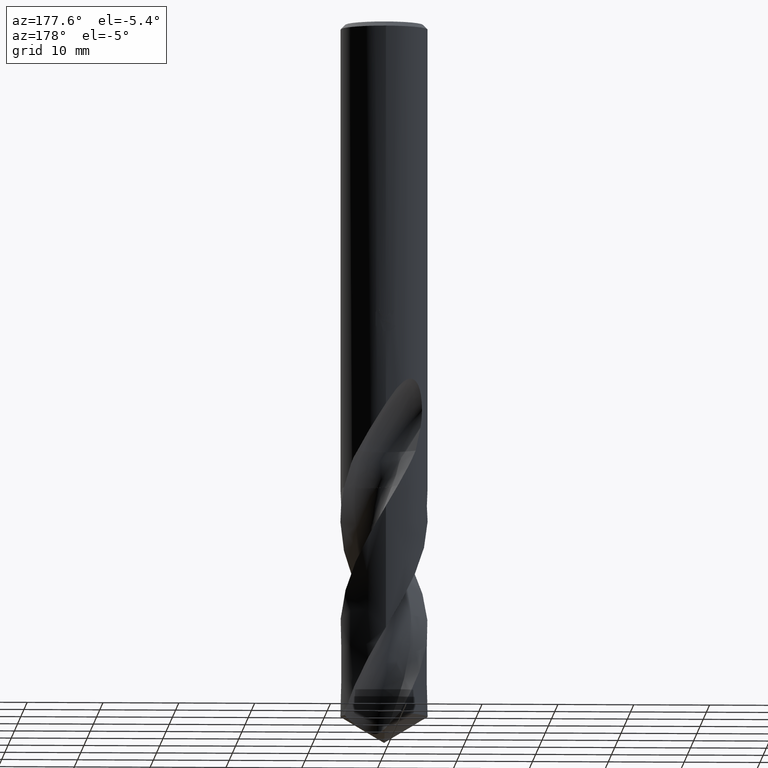
[diagram: clean part render]
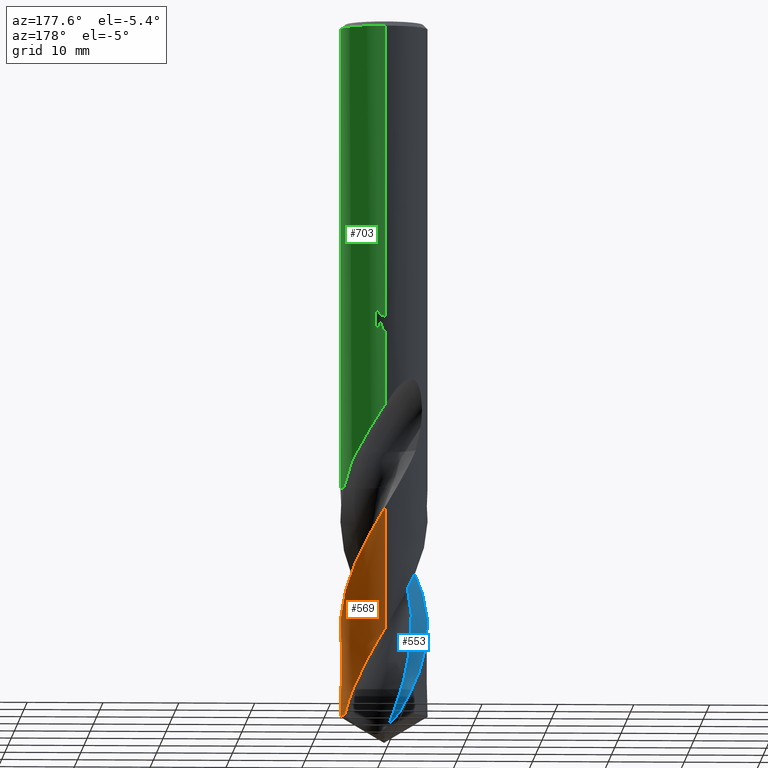
[diagram: same view with three faces highlighted in distinct colors, each labeled with its STEP entity id]
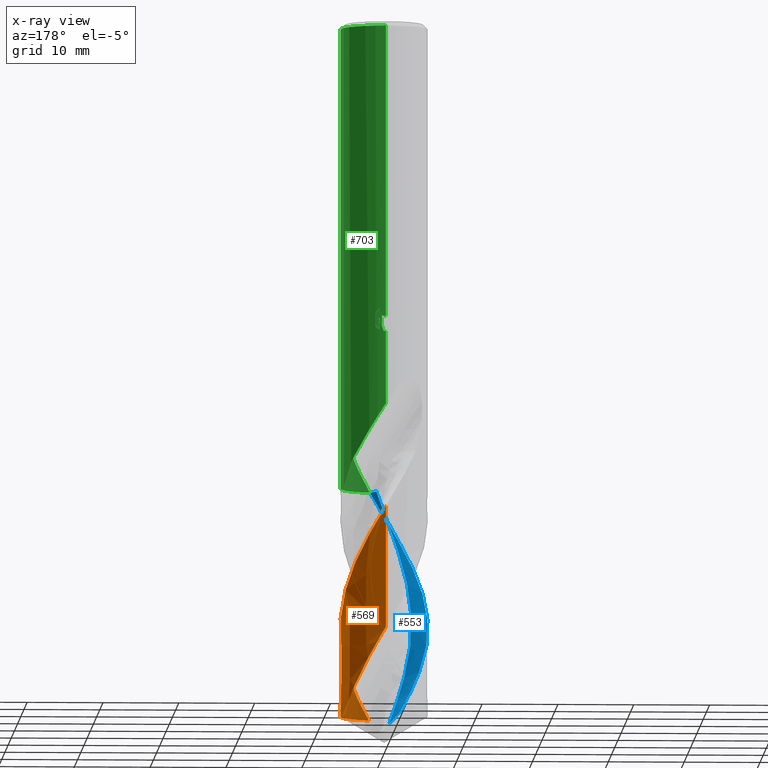
[diagram: x-ray of the same camera — body ghosted, the three highlighted faces saturated]
A machine part, auxiliary view with three faces highlighted in distinct colors.
The next image is the same camera in x-ray (body ghosted, the three faces saturated) — at least one of them is partly hidden behind the body in this view.
Their STEP definitions:

[orange] entity #569 — the highlighted conical surface has half-angle 0 deg.
#267=VERTEX_POINT('',#742);
#287=EDGE_CURVE('',#319,#267,#763,.T.);
#319=VERTEX_POINT('',#797);
#367=EDGE_CURVE('',#387,#691,#848,.T.);
#387=VERTEX_POINT('',#872);
#403=EDGE_CURVE('',#319,#691,#893,.T.);
#527=EDGE_CURVE('',#387,#267,#1024,.T.);
#569=ADVANCED_FACE('',(#1069),#1070,.T.);
#691=VERTEX_POINT('',#1206);
#742=CARTESIAN_POINT('',(3.20041766304614E-015,5.7499624244146,-80.2178718951749));
#763=LINE('',#1389,#1390);
#797=CARTESIAN_POINT('',(-1.18986122117529E-014,5.74990918113268,-64.1676571706662));
#848=CIRCLE('',#3029,5.75);
#872=CARTESIAN_POINT('',(5.29059270861493,2.2521387149886,-91.5450514405915));
#893=B_SPLINE_CURVE_WITH_KNOTS('',3,(#4177,#4178,#4179,#4180,#4181,#4182,#4183,#4184,#4185,#4186,#4187,#4188,#4189,#4190,#4191,#4192,#4193,#4194,#4195,#4196,#4197,#4198,#4199,#4200,#4201,#4202,#4203,#4204,#4205,#4206,#4207,#4208,#4209,#4210,#4211,#4212,#4213,#4214,#4215,#4216,#4217,#4218,#4219,#4220,#4221,#4222,#4223,#4224,#4225,#4226,#4227,#4228,#4229,#4230),.UNSPECIFIED.,.F.,.F.,(4,2,2,2,2,2,2,2,2,2,2,2,2,2,2,2,2,2,2,2,2,2,2,2,2,2,4),(0.0,2.99058218471604,5.09417590476594,6.14555053451025,8.24858072771413,8.77354625455534,10.9154304070789,11.4506291270123,13.5907262284437,14.6614087604156,15.7347783019599,16.2721043805413,17.3438532425549,19.4880628600157,19.7297798634997,21.6359597791469,23.3095110379276,24.7746160400933,25.415098701845,27.8175177233194,28.0428586697684,29.7904662784701,30.446107516333,31.019588796564,33.0280774075556,34.0325649657904,35.0369068433877),.UNSPECIFIED.);
#1024=B_SPLINE_CURVE_WITH_KNOTS('',3,(#5305,#5306,#5307,#5308,#5309,#5310,#5311,#5312,#5313,#5314,#5315,#5316,#5317,#5318,#5319,#5320,#5321,#5322,#5323,#5324,#5325,#5326,#5327,#5328,#5329,#5330,#5331,#5332,#5333,#5334,#5335,#5336,#5337,#5338,#5339,#5340,#5341,#5342,#5343,#5344,#5345,#5346,#5347,#5348,#5349,#5350,#5351,#5352,#5353,#5354),.UNSPECIFIED.,.F.,.F.,(4,2,2,2,2,2,2,2,2,2,2,2,2,2,2,2,2,2,2,2,2,2,2,2,4),(0.0,0.941647731960947,1.98477535587764,4.07382297962059,4.59460417437471,5.92103137837952,8.06810609950576,9.14297982474527,10.216909271789,11.9639145555234,13.038573890981,14.9671165081396,15.9034067747389,18.060923154003,18.4564625276565,21.040035445868,21.1159693745982,23.4712200408874,24.1761701578863,25.5453604956562,27.9409924483365,28.8397218571972,30.4101824918901,32.7727497577014,35.1194182658402),.UNSPECIFIED.);
#1069=FACE_OUTER_BOUND('',#5635,.T.);
#1070=CONICAL_SURFACE('',#5636,5.74995,3.31729405725101E-006);
#1206=CARTESIAN_POINT('',(1.79632452488737,-5.46220817996606,-91.5450514405915));
#1389=CARTESIAN_POINT('',(-7.04590510007028E-016,5.74995,-76.4725257202957));
#1390=VECTOR('',#6912,1.0);
#3029=AXIS2_PLACEMENT_3D('',#6958,#6959,#6960);
#4177=CARTESIAN_POINT('',(-1.61734998715461,5.51774674740223,-61.4036546112559));
#4178=CARTESIAN_POINT('',(-1.12883666681916,5.66094167760172,-62.2607317719156));
#4179=CARTESIAN_POINT('',(-0.62351901038473,5.73860128513405,-63.1164037456356));
#4180=CARTESIAN_POINT('',(0.243047594537756,5.7559100260359,-64.5774479238013));
#4181=CARTESIAN_POINT('',(0.600793689765306,5.72962957079828,-65.179793124741));
#4182=CARTESIAN_POINT('',(1.1301806195747,5.64058713684087,-66.0846791022338));
#4183=CARTESIAN_POINT('',(1.30507766635044,5.60270392521229,-66.3859817805289));
#4184=CARTESIAN_POINT('',(1.82357919614719,5.46480401497973,-67.2908543297883));
#4185=CARTESIAN_POINT('',(2.16001318945741,5.34078687680789,-67.8930170396615));
#4186=CARTESIAN_POINT('',(2.56336696490773,5.14769425590522,-68.646784689177));
#4187=CARTESIAN_POINT('',(2.64301898605191,5.10725554911913,-68.7973091529076));
#4188=CARTESIAN_POINT('',(3.04267670377315,4.89250051566813,-69.5623186996234));
#4189=CARTESIAN_POINT('',(3.34658670263547,4.6898706323283,-70.1756803008984));
#4190=CARTESIAN_POINT('',(3.69992750724707,4.40233402303483,-70.9435928288055));
#4191=CARTESIAN_POINT('',(3.76918381363993,4.34318605150958,-71.0970551604285));
#4192=CARTESIAN_POINT('',(4.10819109300873,4.03944264709741,-71.8645219397154));
#4193=CARTESIAN_POINT('',(4.35572550083248,3.7712159714299,-72.4774941890765));
#4194=CARTESIAN_POINT('',(4.68655653186224,3.33634461649002,-73.398551971627));
#4195=CARTESIAN_POINT('',(4.78990188157311,3.18619475681996,-73.705452087709));
#4196=CARTESIAN_POINT('',(4.98220377155731,2.87625326500558,-74.3205926389808));
#4197=CARTESIAN_POINT('',(5.07103704229249,2.71657744982027,-74.628428583419));
#4198=CARTESIAN_POINT('',(5.19271886272451,2.4710123034708,-75.0905236978622));
#4199=CARTESIAN_POINT('',(5.23135550118806,2.38812882186597,-75.2446489876867));
#4200=CARTESIAN_POINT('',(5.3410969702307,2.13725160154031,-75.706251860882));
#4201=CARTESIAN_POINT('',(5.40618787373614,1.96679592626463,-76.0134292855065));
#4202=CARTESIAN_POINT('',(5.57685362917018,1.44696884791411,-76.936128870833));
#4203=CARTESIAN_POINT('',(5.65742561426128,1.09026417649023,-77.5500640594125));
#4204=CARTESIAN_POINT('',(5.70885943819984,0.687465291477992,-78.2345355293048));
#4205=CARTESIAN_POINT('',(5.71363162055675,0.646607004588638,-78.3038700195977));
#4206=CARTESIAN_POINT('',(5.75213772172567,0.28311966360785,-78.9201132391666));
#4207=CARTESIAN_POINT('',(5.75895242954577,-0.0417968041966504,-79.466457137538));
#4208=CARTESIAN_POINT('',(5.72022476129946,-0.649790979499311,-80.493534346358));
#4209=CARTESIAN_POINT('',(5.68102735739467,-0.932255492981021,-80.9729007842047));
#4210=CARTESIAN_POINT('',(5.56859860057988,-1.4542962093602,-81.8735239374303));
#4211=CARTESIAN_POINT('',(5.50031639808184,-1.69435900848095,-82.2934833436511));
#4212=CARTESIAN_POINT('',(5.38007002670866,-2.03196968231927,-82.8975889133944));
#4213=CARTESIAN_POINT('',(5.34058451981475,-2.13359182498835,-83.0812577028844));
#4214=CARTESIAN_POINT('',(5.13939533353383,-2.61074182586139,-83.9543683047436));
#4215=CARTESIAN_POINT('',(4.94079942837743,-2.96950651393044,-84.6421299071413));
#4216=CARTESIAN_POINT('',(4.68376557200343,-3.3355774293852,-85.3960909241602));
#4217=CARTESIAN_POINT('',(4.66141205794628,-3.36674569662718,-85.4607373006208));
#4218=CARTESIAN_POINT('',(4.46298265322398,-3.63765782136798,-86.0268637667295));
#4219=CARTESIAN_POINT('',(4.26885655493333,-3.86363147442052,-86.5279772873799));
#4220=CARTESIAN_POINT('',(3.97907394727661,-4.15231962939736,-87.2176176238084));
#4221=CARTESIAN_POINT('',(3.89773385039702,-4.22876700551323,-87.4057065021257));
#4222=CARTESIAN_POINT('',(3.74115739601347,-4.36756543407578,-87.758394223369));
#4223=CARTESIAN_POINT('',(3.66647623788313,-4.43044472059051,-87.9228842173417));
#4224=CARTESIAN_POINT('',(3.32322451018118,-4.70482960055182,-88.6638607336837));
#4225=CARTESIAN_POINT('',(3.03768159615285,-4.89405675668087,-89.2394890612453));
#4226=CARTESIAN_POINT('',(2.58663641149776,-5.13818971110856,-90.1041481218083));
#4227=CARTESIAN_POINT('',(2.43271384550462,-5.21282948695452,-90.3922261864737));
#4228=CARTESIAN_POINT('',(2.11871133701709,-5.34815516784216,-90.9687342269824));
#4229=CARTESIAN_POINT('',(1.95876093282727,-5.40878766008015,-91.2568447284777));
#4230=CARTESIAN_POINT('',(1.79632452488735,-5.46220817996608,-91.5450514405916));
#5305=CARTESIAN_POINT('',(5.29059270861493,2.25213871498861,-91.5450514405914));
#5306=CARTESIAN_POINT('',(5.22788668778779,2.3994417494547,-91.2750661755595));
#5307=CARTESIAN_POINT('',(5.15904600831951,2.54408562788656,-91.0054738303697));
#5308=CARTESIAN_POINT('',(5.00137831320194,2.8425598712997,-90.436490867594));
#5309=CARTESIAN_POINT('',(4.91132920638735,2.99545392511039,-90.13705451946));
#5310=CARTESIAN_POINT('',(4.62015874739756,3.44132128832589,-89.239169855037));
#5311=CARTESIAN_POINT('',(4.39890112779263,3.71994203584916,-88.6437004279399));
#5312=CARTESIAN_POINT('',(4.09234849253997,4.04015710550025,-87.8954112792793));
#5313=CARTESIAN_POINT('',(4.02975650241857,4.10258947371581,-87.7459630463806));
#5314=CARTESIAN_POINT('',(3.80258972134985,4.31895753104603,-87.2163486169341));
#5315=CARTESIAN_POINT('',(3.63034610785515,4.46473163719525,-86.837063792977));
#5316=CARTESIAN_POINT('',(3.15759010438639,4.81926637377524,-85.8418407740625));
#5317=CARTESIAN_POINT('',(2.84524886197869,5.0100059324149,-85.2258394688756));
#5318=CARTESIAN_POINT('',(2.35256668024932,5.24986401400538,-84.3025058064267));
#5319=CARTESIAN_POINT('',(2.18448954441519,5.32199466205102,-83.9949627139832));
#5320=CARTESIAN_POINT('',(1.84221326769227,5.44993484926959,-83.3791537900144));
#5321=CARTESIAN_POINT('',(1.66831631643486,5.50564489315917,-83.0708763027127));
#5322=CARTESIAN_POINT('',(1.20590303517526,5.62990900273608,-82.2627259581148));
#5323=CARTESIAN_POINT('',(0.913879206969131,5.68463362897087,-81.7644265141676));
#5324=CARTESIAN_POINT('',(0.437240523501855,5.73622322964584,-80.9564589771652));
#5325=CARTESIAN_POINT('',(0.255005808417896,5.74719837423171,-80.6482055078936));
#5326=CARTESIAN_POINT('',(-0.254398471436276,5.75363864123733,-79.7884915724204));
#5327=CARTESIAN_POINT('',(-0.581328120977006,5.72985238031404,-79.2393149662353));
#5328=CARTESIAN_POINT('',(-1.0614635561854,5.65336561541122,-78.4194712108754));
#5329=CARTESIAN_POINT('',(-1.21716665087663,5.6218956098806,-78.1510723535405));
#5330=CARTESIAN_POINT('',(-1.72673412349295,5.49674799564908,-77.2658110449934));
#5331=CARTESIAN_POINT('',(-2.07281220666928,5.37578866301147,-76.6524610650547));
#5332=CARTESIAN_POINT('',(-2.4658638299339,5.19479682035515,-75.9218997269201));
#5333=CARTESIAN_POINT('',(-2.52621517204816,5.16571646636501,-75.8086543072639));
#5334=CARTESIAN_POINT('',(-2.97697590846444,4.93872902844701,-74.9563802933547));
#5335=CARTESIAN_POINT('',(-3.34396503741081,4.69798282646414,-74.2241086978141));
#5336=CARTESIAN_POINT('',(-3.68991189827015,4.40982149814476,-73.4633322336673));
#5337=CARTESIAN_POINT('',(-3.6997563719588,4.40156536758418,-73.441617857128));
#5338=CARTESIAN_POINT('',(-4.01447915753743,4.13581665062136,-72.7456474783359));
#5339=CARTESIAN_POINT('',(-4.29185515623193,3.84724242993664,-72.0766812636945));
#5340=CARTESIAN_POINT('',(-4.6106467073045,3.43772501385124,-71.2012020463144));
#5341=CARTESIAN_POINT('',(-4.68106873700524,3.34119485625875,-70.9992620953959));
#5342=CARTESIAN_POINT('',(-4.87928158491965,3.05092466336303,-70.4060145385098));
#5343=CARTESIAN_POINT('',(-4.99850145649163,2.85143098591718,-70.0154689215302));
#5344=CARTESIAN_POINT('',(-5.29242926209725,2.28410443490822,-68.9392909426014));
#5345=CARTESIAN_POINT('',(-5.44062557222192,1.90433632614894,-68.2540104012115));
#5346=CARTESIAN_POINT('',(-5.58764757369932,1.36492979696426,-67.3123544093275));
#5347=CARTESIAN_POINT('',(-5.62186878849074,1.21629821664208,-67.0557287071569));
#5348=CARTESIAN_POINT('',(-5.69952965612219,0.804869884672083,-66.3497374445495));
#5349=CARTESIAN_POINT('',(-5.73069761953321,0.5400528555295,-65.8996260552787));
#5350=CARTESIAN_POINT('',(-5.76248148043429,-0.126646205113222,-64.7750869433314));
#5351=CARTESIAN_POINT('',(-5.73961308568315,-0.52777693443462,-64.103440075905));
#5352=CARTESIAN_POINT('',(-5.61153327047647,-1.31537076595852,-62.7563443910608));
#5353=CARTESIAN_POINT('',(-5.50699017048106,-1.70180127284542,-62.0767230916124));
#5354=CARTESIAN_POINT('',(-5.36175278728634,-2.07676605355927,-61.4048020341639));
#5635=EDGE_LOOP('',(#7184,#7185,#7186,#7187));
#5636=AXIS2_PLACEMENT_3D('',#7188,#7189,#7190);
#6912=DIRECTION('',(-4.06237937999934E-022,3.31729405724492E-006,-0.999999999994498));
#6958=CARTESIAN_POINT('',(0.0,0.0,-91.5450514405915));
#6959=DIRECTION('',(0.0,0.0,-1.0));
#6960=DIRECTION('',(0.0,1.0,0.0));
#7184=ORIENTED_EDGE('',*,*,#287,.F.);
#7185=ORIENTED_EDGE('',*,*,#403,.T.);
#7186=ORIENTED_EDGE('',*,*,#367,.F.);
#7187=ORIENTED_EDGE('',*,*,#527,.T.);
#7188=CARTESIAN_POINT('',(0.0,0.0,-76.4725257202958));
#7189=DIRECTION('',(0.0,-0.0,-1.0));
#7190=DIRECTION('',(0.0,1.0,0.0));

[blue] entity #553 — the highlighted face is a freeform B-spline surface patch.
#307=EDGE_CURVE('',#511,#325,#784,.T.);
#325=VERTEX_POINT('',#803);
#427=EDGE_CURVE('',#325,#465,#920,.T.);
#465=VERTEX_POINT('',#959);
#511=VERTEX_POINT('',#1006);
#553=ADVANCED_FACE('',(#1051),#1052,.F.);
#565=VERTEX_POINT('',#1065);
#579=EDGE_CURVE('',#565,#465,#1080,.T.);
#581=VERTEX_POINT('',#1082);
#629=EDGE_CURVE('',#581,#511,#1139,.T.);
#647=EDGE_CURVE('',#565,#581,#1158,.T.);
#784=B_SPLINE_CURVE_WITH_KNOTS('',3,(#1639,#1640,#1641,#1642,#1643,#1644,#1645,#1646,#1647,#1648,#1649,#1650,#1651,#1652,#1653,#1654,#1655,#1656,#1657,#1658,#1659,#1660,#1661,#1662,#1663,#1664,#1665,#1666,#1667,#1668,#1669,#1670,#1671,#1672,#1673,#1674,#1675,#1676,#1677,#1678,#1679,#1680,#1681,#1682,#1683,#1684,#1685,#1686,#1687,#1688,#1689,#1690,#1691,#1692),.UNSPECIFIED.,.F.,.F.,(4,2,2,2,2,2,2,2,2,2,2,2,2,2,2,2,2,2,2,2,2,2,2,2,2,2,4),(0.0,2.99058218470192,5.09417590348976,6.14555053533733,8.24858072923558,8.77354625636485,10.9154304064291,11.4506291256773,13.5907262264745,14.6614087572744,15.7347782990684,16.272104377777,17.3438532391376,19.4880628548465,19.7297798587035,21.6359597757161,23.3095110341407,24.7746160368202,25.4150986989878,27.8175177216385,28.0428586681694,29.7904662776522,30.4461075159543,31.0195887966303,33.0280774089054,34.0325649677768,35.0369068460155),.UNSPECIFIED.);
#803=CARTESIAN_POINT('',(-1.79632452488735,5.46220817996607,-91.5450514405915));
#920=B_SPLINE_CURVE_WITH_KNOTS('',3,(#4350,#4351,#4352,#4353,#4354,#4355,#4356,#4357,#4358,#4359),.UNSPECIFIED.,.F.,.F.,(4,2,2,2,4),(0.0,0.724924501125053,3.20794857288069,4.42067385218891,5.62032250738999),.UNSPECIFIED.);
#959=CARTESIAN_POINT('',(-0.521649803321072,3.58722109129393,-92.8219093730857));
#1006=CARTESIAN_POINT('',(1.23427014216031E-014,-5.74990918113269,-64.1676571706661));
#1051=FACE_OUTER_BOUND('',#5426,.T.);
#1052=B_SPLINE_SURFACE_WITH_KNOTS('',3,3,((#5427,#5428,#5429,#5430,#5431,#5432,#5433,#5434,#5435,#5436,#5437,#5438,#5439,#5440,#5441,#5442,#5443,#5444,#5445,#5446,#5447,#5448,#5449,#5450,#5451,#5452,#5453,#5454,#5455,#5456,#5457,#5458,#5459,#5460,#5461,#5462,#5463,#5464,#5465,#5466,#5467,#5468,#5469),(#5470,#5471,#5472,#5473,#5474,#5475,#5476,#5477,#5478,#5479,#5480,#5481,#5482,#5483,#5484,#5485,#5486,#5487,#5488,#5489,#5490,#5491,#5492,#5493,#5494,#5495,#5496,#5497,#5498,#5499,#5500,#5501,#5502,#5503,#5504,#5505,#5506,#5507,#5508,#5509,#5510,#5511,#5512),(#5513,#5514,#5515,#5516,#5517,#5518,#5519,#5520,#5521,#5522,#5523,#5524,#5525,#5526,#5527,#5528,#5529,#5530,#5531,#5532,#5533,#5534,#5535,#5536,#5537,#5538,#5539,#5540,#5541,#5542,#5543,#5544,#5545,#5546,#5547,#5548,#5549,#5550,#5551,#5552,#5553,#5554,#5555),(#5556,#5557,#5558,#5559,#5560,#5561,#5562,#5563,#5564,#5565,#5566,#5567,#5568,#5569,#5570,#5571,#5572,#5573,#5574,#5575,#5576,#5577,#5578,#5579,#5580,#5581,#5582,#5583,#5584,#5585,#5586,#5587,#5588,#5589,#5590,#5591,#5592,#5593,#5594,#5595,#5596,#5597,#5598)),.UNSPECIFIED.,.F.,.F.,.F.,(4,4),(4,1,2,2,2,2,2,2,2,2,2,2,2,2,2,2,2,2,2,2,2,4),(-1.27098987801402E-015,7.66666667),(0.0,0.777478476916658,1.55495695383332,2.33243543074997,3.10991390766663,4.66487086149995,6.21982781533326,7.77478476916658,9.32974172299989,12.4396556306665,15.5495695383332,18.6594834459998,21.7693973536664,24.879311261333,27.9892251689997,31.0991390766663,34.2090529843329,37.3189668919996,40.4288807996662,43.5387947073328,46.6487086149995,49.7586225226661),.UNSPECIFIED.);
#1065=CARTESIAN_POINT('',(0.870201438401324,-3.51320031969526,-61.405));
#1080=B_SPLINE_CURVE_WITH_KNOTS('',3,(#5685,#5686,#5687,#5688,#5689,#5690,#5691,#5692,#5693,#5694,#5695,#5696,#5697,#5698,#5699,#5700,#5701,#5702,#5703,#5704,#5705,#5706,#5707,#5708,#5709,#5710,#5711,#5712,#5713,#5714,#5715,#5716,#5717,#5718,#5719,#5720,#5721,#5722,#5723,#5724,#5725),.UNSPECIFIED.,.F.,.F.,(4,1,2,2,2,2,1,2,1,2,2,2,2,2,2,2,2,2,2,2,2,4),(0.0,0.777478476916658,1.55495695383332,2.33243543074997,3.10991390766663,4.66487086149995,6.21982781533326,7.77478476916658,9.32974172299989,12.4396556306665,15.5495695383332,18.6594834459998,21.7693973536664,24.879311261333,27.9892251689997,31.0991390766663,34.2090529843329,37.3189668919996,40.4288807996662,43.5387947073328,46.6487086149995,49.7586225226661),.UNSPECIFIED.);
#1082=CARTESIAN_POINT('',(1.61658313120639,-5.51797147334416,-61.405));
#1139=B_SPLINE_CURVE_WITH_KNOTS('',3,(#6473,#6474,#6475,#6476,#6477,#6478,#6479,#6480,#6481,#6482,#6483,#6484,#6485,#6486,#6487,#6488,#6489,#6490,#6491,#6492,#6493,#6494,#6495,#6496,#6497,#6498,#6499,#6500,#6501,#6502,#6503,#6504,#6505,#6506,#6507,#6508,#6509,#6510,#6511,#6512,#6513,#6514,#6515,#6516,#6517,#6518,#6519,#6520,#6521,#6522,#6523,#6524,#6525,#6526),.UNSPECIFIED.,.F.,.F.,(4,2,2,2,2,2,2,2,2,2,2,2,2,2,2,2,2,2,2,2,2,2,2,2,2,2,4),(0.0,2.99058218470192,5.09417590348976,6.14555053533733,8.24858072923558,8.77354625636485,10.9154304064291,11.4506291256773,13.5907262264745,14.6614087572744,15.7347782990684,16.272104377777,17.3438532391376,19.4880628548465,19.7297798587035,21.6359597757161,23.3095110341407,24.7746160368202,25.4150986989878,27.8175177216385,28.0428586681694,29.7904662776522,30.4461075159543,31.0195887966303,33.0280774089054,34.0325649677768,35.0369068460155),.UNSPECIFIED.);
#1158=B_SPLINE_CURVE_WITH_KNOTS('',3,(#6551,#6552,#6553,#6554,#6555,#6556),.UNSPECIFIED.,.F.,.F.,(4,2,4),(-7.66637628460305,-3.83318803482369,-0.0),.UNSPECIFIED.);
#1639=CARTESIAN_POINT('',(1.61734998715461,-5.51774674740223,-61.4036546112559));
#1640=CARTESIAN_POINT('',(1.12883666682146,-5.66094167760104,-62.2607317719116));
#1641=CARTESIAN_POINT('',(0.623519010395905,-5.73860128513378,-63.1164037456169));
#1642=CARTESIAN_POINT('',(-0.243047594331426,-5.75591002603183,-64.5774479234534));
#1643=CARTESIAN_POINT('',(-0.600793689349294,-5.72962957082899,-65.1797931240408));
#1644=CARTESIAN_POINT('',(-1.13018061932115,-5.64058713690316,-66.084679101795));
#1645=CARTESIAN_POINT('',(-1.30507766645178,-5.60270392520029,-66.3859817806992));
#1646=CARTESIAN_POINT('',(-1.82357919671207,-5.46480401479967,-67.2908543307874));
#1647=CARTESIAN_POINT('',(-2.16001319013189,-5.34078687654387,-67.8930170408793));
#1648=CARTESIAN_POINT('',(-2.56336696571835,-5.14769425550249,-68.6467846907024));
#1649=CARTESIAN_POINT('',(-2.64301898690238,-5.1072555486799,-68.7973091545212));
#1650=CARTESIAN_POINT('',(-3.04267670426972,-4.89250051532876,-69.5623187006328));
#1651=CARTESIAN_POINT('',(-3.34658670276563,-4.68987063220298,-70.1756803012019));
#1652=CARTESIAN_POINT('',(-3.69992750697471,-4.40233402326135,-70.9435928282084));
#1653=CARTESIAN_POINT('',(-3.76918381328332,-4.34318605181673,-71.0970551596353));
#1654=CARTESIAN_POINT('',(-4.10819109252369,-4.0394426475818,-71.8645219385606));
#1655=CARTESIAN_POINT('',(-4.35572550031103,-3.77121597202221,-72.4774941877494));
#1656=CARTESIAN_POINT('',(-4.68655653122643,-3.33634461737239,-73.3985519697945));
#1657=CARTESIAN_POINT('',(-4.78990188085586,-3.18619475788684,-73.7054520855426));
#1658=CARTESIAN_POINT('',(-4.98220377083819,-2.87625326625394,-74.3205926365522));
#1659=CARTESIAN_POINT('',(-5.07103704163434,-2.7165774510518,-74.6284285810653));
#1660=CARTESIAN_POINT('',(-5.19271886215332,-2.47101230467197,-75.09052369562));
#1661=CARTESIAN_POINT('',(-5.2313555006446,-2.38812882305718,-75.2446489854796));
#1662=CARTESIAN_POINT('',(-5.34109696970641,-2.1372516028408,-75.7062518585196));
#1663=CARTESIAN_POINT('',(-5.40618787321468,-1.96679592768739,-76.013429282953));
#1664=CARTESIAN_POINT('',(-5.57685362866597,-1.44696884978096,-76.9361288675756));
#1665=CARTESIAN_POINT('',(-5.65742561381797,-1.09026417868841,-77.5500640556423));
#1666=CARTESIAN_POINT('',(-5.70885943790389,-0.687465293939285,-78.2345355251263));
#1667=CARTESIAN_POINT('',(-5.71363162028542,-0.646607006989541,-78.3038700155246));
#1668=CARTESIAN_POINT('',(-5.75213772162975,-0.283119665775701,-78.9201132355122));
#1669=CARTESIAN_POINT('',(-5.75895242957104,0.0417968022233992,-79.4664571342146));
#1670=CARTESIAN_POINT('',(-5.72022476150623,0.649790977637967,-80.4935343432049));
#1671=CARTESIAN_POINT('',(-5.68102735770852,0.932255491038051,-80.9729007808897));
#1672=CARTESIAN_POINT('',(-5.56859860109086,1.45429620741273,-81.8735239340381));
#1673=CARTESIAN_POINT('',(-5.50031639866113,1.69435900660821,-82.2934833403493));
#1674=CARTESIAN_POINT('',(-5.38007002736333,2.03196968058886,-82.8975889102766));
#1675=CARTESIAN_POINT('',(-5.3405845204813,2.13359182332256,-83.0812576998603));
#1676=CARTESIAN_POINT('',(-5.13939533426982,2.61074182443413,-83.954368302042));
#1677=CARTESIAN_POINT('',(-4.94079942914211,2.96950651267669,-84.642129904671));
#1678=CARTESIAN_POINT('',(-4.68376557277062,3.33557742830798,-85.396090921931));
#1679=CARTESIAN_POINT('',(-4.66141205871608,3.36674569556134,-85.4607372984045));
#1680=CARTESIAN_POINT('',(-4.46298265401289,3.63765782040547,-86.0268637646329));
#1681=CARTESIAN_POINT('',(-4.26885655573213,3.8636314735426,-86.5279772853806));
#1682=CARTESIAN_POINT('',(-3.9790739480556,4.15231962865216,-87.2176176219914));
#1683=CARTESIAN_POINT('',(-3.897733851156,4.22876700481489,-87.4057065003875));
#1684=CARTESIAN_POINT('',(-3.74115739672324,4.36756543346895,-87.7583942217954));
#1685=CARTESIAN_POINT('',(-3.66647623856368,4.43044472002853,-87.922884215854));
#1686=CARTESIAN_POINT('',(-3.32322451075019,4.70482960016012,-88.663860732521));
#1687=CARTESIAN_POINT('',(-3.03768159662509,4.89405675639746,-89.2394890603175));
#1688=CARTESIAN_POINT('',(-2.58663641180465,5.13818971095633,-90.1041481212311));
#1689=CARTESIAN_POINT('',(-2.43271384575329,5.21282948684063,-90.3922261860126));
#1690=CARTESIAN_POINT('',(-2.1187113371461,5.34815516779319,-90.9687342267499));
#1691=CARTESIAN_POINT('',(-1.95876093289296,5.40878766005853,-91.2568447283612));
#1692=CARTESIAN_POINT('',(-1.79632452488739,5.46220817996605,-91.5450514405915));
#4350=CARTESIAN_POINT('',(-3.79982283950383,7.1893216918138,-90.1139648899832));
#4351=CARTESIAN_POINT('',(-3.62068933715995,7.07241223960804,-90.2263658820893));
#4352=CARTESIAN_POINT('',(-3.44566516481622,6.95028144366498,-90.3391953518742));
#4353=CARTESIAN_POINT('',(-2.68800928990155,6.38458185357602,-90.8426177925018));
#4354=CARTESIAN_POINT('',(-2.15314621998299,5.8851379123936,-91.2384009870086));
#4355=CARTESIAN_POINT('',(-1.45491059107794,5.0623187680963,-91.8361952263363));
#4356=CARTESIAN_POINT('',(-1.24173530434768,4.77988142704523,-92.0335569127821));
#4357=CARTESIAN_POINT('',(-0.852857776734991,4.19573781254534,-92.4284421177511));
#4358=CARTESIAN_POINT('',(-0.678506336682633,3.89687235778807,-92.624225785713));
#4359=CARTESIAN_POINT('',(-0.521649803415215,3.58722109126888,-92.8219093730926));
#5426=EDGE_LOOP('',(#7169,#7170,#7171,#7172,#7173));
#5427=CARTESIAN_POINT('',(2.71057599219141,-2.84775733780859,-56.699));
#5428=CARTESIAN_POINT('',(2.54548020740996,-2.83853145515873,-56.8982602796338));
#5429=CARTESIAN_POINT('',(2.25686662553824,-2.84157371829035,-57.2962410735181));
#5430=CARTESIAN_POINT('',(2.05206332574911,-2.88300001317058,-57.693200876088));
#5431=CARTESIAN_POINT('',(1.88824189526414,-2.94465256760559,-58.0903809452473));
#5432=CARTESIAN_POINT('',(1.82909710225175,-2.9869089652124,-58.2891310911732));
#5433=CARTESIAN_POINT('',(1.7502112658721,-3.09744704630068,-58.6891697180144));
#5434=CARTESIAN_POINT('',(1.70651678547023,-3.1498294754675,-58.8895377980032));
#5435=CARTESIAN_POINT('',(1.56399317548619,-3.29733832745947,-59.4913092726665));
#5436=CARTESIAN_POINT('',(1.43589172937135,-3.36824167816673,-59.8921765374634));
#5437=CARTESIAN_POINT('',(1.13831297545913,-3.45375330089933,-60.6887160194128));
#5438=CARTESIAN_POINT('',(0.988872864929031,-3.48943368674613,-61.0869192225342));
#5439=CARTESIAN_POINT('',(0.691624470416531,-3.54915766576711,-61.8835778788122));
#5440=CARTESIAN_POINT('',(0.544745034363365,-3.57448083125752,-62.2823740766118));
#5441=CARTESIAN_POINT('',(0.253944624910824,-3.61675402230719,-63.0817407642191));
#5442=CARTESIAN_POINT('',(0.105114002956216,-3.62518897067261,-63.4811271130828));
#5443=CARTESIAN_POINT('',(-0.342135214518512,-3.61943422211315,-64.6778412149881));
#5444=CARTESIAN_POINT('',(-0.641076009381425,-3.57348871275593,-65.4757160889135));
#5445=CARTESIAN_POINT('',(-1.21636426124258,-3.42650844011433,-67.0720017531924));
#5446=CARTESIAN_POINT('',(-1.49522692314438,-3.30942541111918,-67.8701138803854));
#5447=CARTESIAN_POINT('',(-2.01704047398724,-3.02498574241991,-69.4661938467636));
#5448=CARTESIAN_POINT('',(-2.25875576423768,-2.84325582753943,-70.2642522163581));
#5449=CARTESIAN_POINT('',(-2.69527684911414,-2.44011192470473,-71.8604180000889));
#5450=CARTESIAN_POINT('',(-2.88524467350374,-2.2047939432426,-72.6584922150333));
#5451=CARTESIAN_POINT('',(-3.21000593151931,-1.70720817275418,-74.2546282874045));
#5452=CARTESIAN_POINT('',(-3.33672069538584,-1.43263712155703,-75.0526963479022));
#5453=CARTESIAN_POINT('',(-3.5300558093855,-0.870823265647849,-76.6488394851381));
#5454=CARTESIAN_POINT('',(-3.58578486030447,-0.573584238307679,-77.4469131598307));
#5455=CARTESIAN_POINT('',(-3.63577140420886,0.0185253577244023,-79.0430515600018));
#5456=CARTESIAN_POINT('',(-3.61712211445724,0.320375904017039,-79.8411214032723));
#5457=CARTESIAN_POINT('',(-3.52085542848229,0.90674417692153,-81.4372663321546));
#5458=CARTESIAN_POINT('',(-3.42898837801249,1.1948792663442,-82.2353391543837));
#5459=CARTESIAN_POINT('',(-3.19237874852351,1.73992482095229,-83.8314734351822));
#5460=CARTESIAN_POINT('',(-3.03296883497261,1.99686785179402,-84.6295325862405));
#5461=CARTESIAN_POINT('',(-2.67041670637188,2.46757539093986,-86.2257110112655));
#5462=CARTESIAN_POINT('',(-2.45282620111389,2.67769910590183,-87.0238154465309));
#5463=CARTESIAN_POINT('',(-1.98615566513444,3.0454176576841,-88.6198261507187));
#5464=CARTESIAN_POINT('',(-1.72405128246701,3.19611975533318,-89.4178203712625));
#5465=CARTESIAN_POINT('',(-1.18044701027278,3.43772728430825,-91.0143051934612));
#5466=CARTESIAN_POINT('',(-0.889586896490948,3.51981964260575,-91.8125158975877));
#5467=CARTESIAN_POINT('',(-0.308555110394384,3.62814786267576,-93.4079262998237));
#5468=CARTESIAN_POINT('',(-0.0038334275039697,3.63284937726858,-94.2057306292196));
#5469=CARTESIAN_POINT('',(0.296970270973681,3.59850757801272,-95.0030993049394));
#5470=CARTESIAN_POINT('',(4.51762665600206,-4.65480800160222,-56.6990000000085));
#5471=CARTESIAN_POINT('',(4.35240951783642,-4.64570353116029,-56.8982634120067));
#5472=CARTESIAN_POINT('',(4.04910687741847,-4.66360935924101,-57.2954480759374));
#5473=CARTESIAN_POINT('',(3.79948645790202,-4.74823624390597,-57.6905595493462));
#5474=CARTESIAN_POINT('',(3.5739442138641,-4.86584735556415,-58.0861964069894));
#5475=CARTESIAN_POINT('',(3.47464371794678,-4.94323554750588,-58.2843670368423));
#5476=CARTESIAN_POINT('',(3.29456204155394,-5.13460710015496,-58.6852198725383));
#5477=CARTESIAN_POINT('',(3.19956785041602,-5.22482014922575,-58.8862537841449));
#5478=CARTESIAN_POINT('',(2.90169784979592,-5.4784247414714,-59.4905596504132));
#5479=CARTESIAN_POINT('',(2.67649931770457,-5.60469922998422,-59.8928810136334));
#5480=CARTESIAN_POINT('',(2.20051708898423,-5.78024600492804,-60.6882134323527));
#5481=CARTESIAN_POINT('',(1.95839362968434,-5.85616191529854,-61.0857569443075));
#5482=CARTESIAN_POINT('',(1.4684671200175,-5.98593438533226,-61.8812977141516));
#5483=CARTESIAN_POINT('',(1.22094210702665,-6.04129175704035,-62.2799049800835));
#5484=CARTESIAN_POINT('',(0.720757639080209,-6.13160641758758,-63.0802970831988));
#5485=CARTESIAN_POINT('',(0.467369974160712,-6.15712556886948,-63.4799607705014));
#5486=CARTESIAN_POINT('',(-0.293880154309837,-6.18318152467329,-64.6763646359801));
#5487=CARTESIAN_POINT('',(-0.802330437451563,-6.13271849545241,-65.4740837039268));
#5488=CARTESIAN_POINT('',(-1.7964343358858,-5.92434152808815,-67.0704851333342));
#5489=CARTESIAN_POINT('',(-2.27760537127048,-5.75144036661781,-67.8686291073752));
#5490=CARTESIAN_POINT('',(-3.19003870104885,-5.30525304861996,-69.4646601323983));
#5491=CARTESIAN_POINT('',(-3.61425494451527,-5.01999485648082,-70.2627093677038));
#5492=CARTESIAN_POINT('',(-4.39007797392783,-4.36448438529934,-71.8588930338529));
#5493=CARTESIAN_POINT('',(-4.7317046117038,-3.98416462962802,-72.656970244479));
#5494=CARTESIAN_POINT('',(-5.32380143388835,-3.15890919236235,-74.2531025521306));
#5495=CARTESIAN_POINT('',(-5.5621403152946,-2.70664295821753,-75.0511677855947));
#5496=CARTESIAN_POINT('',(-5.93461278913444,-1.76171099781723,-76.6473128051904));
#5497=CARTESIAN_POINT('',(-6.05513035845573,-1.26488811639227,-77.4453880833531));
#5498=CARTESIAN_POINT('',(-6.18515084159038,-0.257562886929302,-79.0415246011643));
#5499=CARTESIAN_POINT('',(-6.18054077303126,0.253638610883171,-79.8395936457413));
#5500=CARTESIAN_POINT('',(-6.06038647044055,1.26218866029617,-81.4357404569835));
#5501=CARTESIAN_POINT('',(-5.93096096126024,1.75675708664358,-82.2338134958867));
#5502=CARTESIAN_POINT('',(-5.56798239986132,2.70536411449088,-83.8299458943253));
#5503=CARTESIAN_POINT('',(-5.32167430388866,3.15333471359806,-84.62800501028));
#5504=CARTESIAN_POINT('',(-4.73788983824666,3.98452498048481,-86.2241909647443));
#5505=CARTESIAN_POINT('',(-4.38937475373622,4.35857697791158,-87.0222921104454));
#5506=CARTESIAN_POINT('',(-3.6201252308107,5.02170366693265,-88.6182632850771));
#5507=CARTESIAN_POINT('',(-3.19094176018095,5.29937667604171,-89.4162918835021));
#5508=CARTESIAN_POINT('',(-2.2822116844723,5.753232509261,-91.0128971767288));
#5509=CARTESIAN_POINT('',(-1.79819745551996,5.91786911053481,-91.8109709785816));
#5510=CARTESIAN_POINT('',(-0.807734998287527,6.1435057588503,-93.4061630270792));
#5511=CARTESIAN_POINT('',(-0.297592985713407,6.17974587080044,-94.2043685647941));
#5512=CARTESIAN_POINT('',(0.208314990928519,6.15252445047937,-95.0015960635279));
#5513=CARTESIAN_POINT('',(6.32467731983464,-6.46185866546885,-56.6989999999915));
#5514=CARTESIAN_POINT('',(6.15933884038272,-6.45287547748027,-56.8982665820073));
#5515=CARTESIAN_POINT('',(5.84134711184377,-6.48564508951609,-57.2946550828908));
#5516=CARTESIAN_POINT('',(5.54690961267852,-6.61347242601556,-57.6879181759031));
#5517=CARTESIAN_POINT('',(5.25964650993642,-6.78704219224832,-58.0820119154024));
#5518=CARTESIAN_POINT('',(5.12019029621391,-6.89956194736869,-58.27960300145));
#5519=CARTESIAN_POINT('',(4.83891285465524,-7.17176733651642,-58.6812700080764));
#5520=CARTESIAN_POINT('',(4.69261890891164,-7.29981070027648,-58.8829696858615));
#5521=CARTESIAN_POINT('',(4.23940253703132,-7.65951140082547,-59.4898101969343));
#5522=CARTESIAN_POINT('',(3.91710675979625,-7.84115671066681,-59.8935856788759));
#5523=CARTESIAN_POINT('',(3.26272134878084,-8.10673878025329,-60.6877106562345));
#5524=CARTESIAN_POINT('',(2.92791464868836,-8.22289017800956,-61.0845949233243));
#5525=CARTESIAN_POINT('',(2.24530951546601,-8.4227110709644,-61.8790172922768));
#5526=CARTESIAN_POINT('',(1.89713889876733,-8.5081024106394,-62.2774362327146));
#5527=CARTESIAN_POINT('',(1.18757093413974,-8.64645908505421,-63.0788530530139));
#5528=CARTESIAN_POINT('',(0.829626030742867,-8.68906255490249,-63.4787944590686));
#5529=CARTESIAN_POINT('',(-0.245625264798761,-8.74692805194838,-64.6748879944977));
#5530=CARTESIAN_POINT('',(-0.963584427232704,-8.69194869178386,-65.4724530609748));
#5531=CARTESIAN_POINT('',(-2.37650484881407,-8.4221742025382,-67.0689667715858));
#5532=CARTESIAN_POINT('',(-3.05998395759105,-8.19345579757779,-67.8671436117409));
#5533=CARTESIAN_POINT('',(-4.36303678991924,-7.58551987953234,-69.4631271404679));
#5534=CARTESIAN_POINT('',(-4.96975383408961,-7.19673346961052,-70.2611651513833));
#5535=CARTESIAN_POINT('',(-6.08487938956202,-6.28885726180373,-71.8573694350317));
#5536=CARTESIAN_POINT('',(-6.5781644442367,-5.76353595169489,-72.6554491705329));
#5537=CARTESIAN_POINT('',(-7.43759704199065,-4.61060957643993,-74.2515759203698));
#5538=CARTESIAN_POINT('',(-7.78756027777735,-3.98064865190848,-75.0496403928425));
#5539=CARTESIAN_POINT('',(-8.33916942646112,-2.65259887304416,-76.6457849556795));
#5540=CARTESIAN_POINT('',(-8.52447572037618,-1.95619183888881,-77.4438634233843));
#5541=CARTESIAN_POINT('',(-8.73453041525867,-0.533651287260945,-79.0399972257442));
#5542=CARTESIAN_POINT('',(-8.7439591364706,0.186901260437021,-79.838067133394));
#5543=CARTESIAN_POINT('',(-8.59991780762583,1.61763320095099,-81.4342133368059));
#5544=CARTESIAN_POINT('',(-8.43293389864719,2.31863526428466,-82.2322854041932));
#5545=CARTESIAN_POINT('',(-7.94358569717423,3.67080305071227,-83.8284207864668));
#5546=CARTESIAN_POINT('',(-7.61038056907922,4.30980173217123,-84.6264780203012));
#5547=CARTESIAN_POINT('',(-6.80536217400145,5.50147441329225,-86.2226703321167));
#5548=CARTESIAN_POINT('',(-6.32592329199284,6.03945571657468,-87.0207690429177));
#5549=CARTESIAN_POINT('',(-5.25409481093648,6.99798880974111,-88.6167001508006));
#5550=CARTESIAN_POINT('',(-4.65783278491112,7.40263387557493,-89.4147642033877));
#5551=CARTESIAN_POINT('',(-3.38397581178384,8.06873745545009,-91.0114883519228));
#5552=CARTESIAN_POINT('',(-2.70680794303106,8.31591860961145,-91.8094236954221));
#5553=CARTESIAN_POINT('',(-1.30691495781829,8.65886362403659,-93.4044021185714));
#5554=CARTESIAN_POINT('',(-0.59135316980879,8.72664312444325,-94.203007242034));
#5555=CARTESIAN_POINT('',(0.119659710909153,8.70654132291805,-95.0000928220504));
#5556=CARTESIAN_POINT('',(8.13172798364529,-8.26890932926248,-56.699));
#5557=CARTESIAN_POINT('',(7.96626820963292,-8.26004743583434,-56.8982696702623));
#5558=CARTESIAN_POINT('',(7.633587363724,-8.30768078929049,-57.293862100016));
#5559=CARTESIAN_POINT('',(7.29433268600769,-8.47870865675096,-57.6852768638672));
#5560=CARTESIAN_POINT('',(6.94534888736013,-8.70823698020687,-58.0778273624386));
#5561=CARTESIAN_POINT('',(6.76573694132082,-8.85588841201468,-58.2748389324132));
#5562=CARTESIAN_POINT('',(6.3832636009252,-9.20892750801818,-58.6773201773062));
#5563=CARTESIAN_POINT('',(6.18567003268118,-9.37480143285847,-58.8796856425913));
#5564=CARTESIAN_POINT('',(5.57710709369356,-9.84059769718991,-59.4890606335047));
#5565=CARTESIAN_POINT('',(5.15771458342445,-10.0776142624843,-59.8942902138696));
#5566=CARTESIAN_POINT('',(4.32492522701096,-10.433231484282,-60.6872080103507));
#5567=CARTESIAN_POINT('',(3.89743553109116,-10.5896182889145,-61.0834324098026));
#5568=CARTESIAN_POINT('',(3.02215204741949,-10.859487908177,-61.8767373629112));
#5569=CARTESIAN_POINT('',(2.5733360890781,-10.9749132775985,-62.2749671361862));
#5570=CARTESIAN_POINT('',(1.65438383066164,-11.1613115391584,-63.0774093719936));
#5571=CARTESIAN_POINT('',(1.19188200194736,-11.2209989178044,-63.4776281164872));
#5572=CARTESIAN_POINT('',(-0.197370204590086,-11.3106758250985,-64.6734114154896));
#5573=CARTESIAN_POINT('',(-1.12483814941791,-11.2511781215379,-65.470821617168));
#5574=CARTESIAN_POINT('',(-2.95657562934221,-10.9200076434545,-67.0674492105477));
#5575=CARTESIAN_POINT('',(-3.84236217042217,-10.635470164839,-67.8656593093207));
#5576=CARTESIAN_POINT('',(-5.53603525227584,-9.86578777396982,-69.4615929555126));
#5577=CARTESIAN_POINT('',(-6.32525254377724,-9.3734727338469,-70.2596218321391));
#5578=CARTESIAN_POINT('',(-7.77968098496566,-8.21322948710336,-71.8558449393856));
#5579=CARTESIAN_POINT('',(-8.42462485302671,-7.54290628513784,-72.6539271999785));
#5580=CARTESIAN_POINT('',(-9.55139207376974,-6.06231094899056,-74.2500501850959));
#5581=CARTESIAN_POINT('',(-10.0129797800386,-5.25465448856899,-75.0481118305351));
#5582=CARTESIAN_POINT('',(-10.7437265238575,-3.54348660521354,-76.6442582757319));
#5583=CARTESIAN_POINT('',(-10.9938215714699,-2.6474957169734,-77.4423383469066));
#5584=CARTESIAN_POINT('',(-11.2839094996977,-0.809739531914649,-79.0384702669067));
#5585=CARTESIAN_POINT('',(-11.3073775597496,0.120164202598131,-79.8365393758631));
#5586=CARTESIAN_POINT('',(-11.1394490848791,1.97307744903066,-81.4326874616347));
#5587=CARTESIAN_POINT('',(-10.9349062466,2.88051320223153,-82.2307588045162));
#5588=CARTESIAN_POINT('',(-10.319189583807,4.63624222660338,-83.8268941867898));
#5589=CARTESIAN_POINT('',(-9.89908580270029,5.4662683586803,-84.6249504443408));
#5590=CARTESIAN_POINT('',(-8.8728355411712,7.01842423813217,-86.2211502855955));
#5591=CARTESIAN_POINT('',(-8.26247137402522,7.72033358858443,-87.0192438244723));
#5592=CARTESIAN_POINT('',(-6.8880648472027,8.97427481898965,-88.6151391675188));
#5593=CARTESIAN_POINT('',(-6.12472267438762,9.50589079628346,-89.4132375979871));
#5594=CARTESIAN_POINT('',(-4.4857410742208,10.3842426804028,-91.0100784528307));
#5595=CARTESIAN_POINT('',(-3.61541826676509,10.713968430483,-91.8078768940561));
#5596=CARTESIAN_POINT('',(-1.80609508100641,11.1742211672687,-93.4026407281868));
#5597=CARTESIAN_POINT('',(-0.885112963313204,11.2735390297377,-94.2016451776084));
#5598=CARTESIAN_POINT('',(0.031004430863991,11.2605581953847,-94.9985895806389));
#5685=CARTESIAN_POINT('',(2.7105759921207,-2.8477573378793,-56.699));
#5686=CARTESIAN_POINT('',(2.54548020733925,-2.83853145522714,-56.8982602796332));
#5687=CARTESIAN_POINT('',(2.25686662546692,-2.84157371835993,-57.2962410735181));
#5688=CARTESIAN_POINT('',(2.05206332567618,-2.88300001324235,-57.6932008760887));
#5689=CARTESIAN_POINT('',(1.88824189518891,-2.94465256766815,-58.0903809452468));
#5690=CARTESIAN_POINT('',(1.82909710217592,-2.98690896527942,-58.2891310911728));
#5691=CARTESIAN_POINT('',(1.75021126579167,-3.09744704635849,-58.6891697180152));
#5692=CARTESIAN_POINT('',(1.70651678538996,-3.1498294755308,-58.8895377980033));
#5693=CARTESIAN_POINT('',(1.56399317539901,-3.29733832750205,-59.4913092726666));
#5694=CARTESIAN_POINT('',(1.43589172928668,-3.36824167821638,-59.8921765374657));
#5695=CARTESIAN_POINT('',(1.13831297536525,-3.45375330093978,-60.6887160194105));
#5696=CARTESIAN_POINT('',(0.838968330342026,-3.52447428646714,-61.4849520533377));
#5697=CARTESIAN_POINT('',(0.544745034265899,-3.57448083128909,-62.2823740766073));
#5698=CARTESIAN_POINT('',(0.253944624813358,-3.61675402232034,-63.0817407642238));
#5699=CARTESIAN_POINT('',(-0.192606029117072,-3.64223292210961,-64.2794017944179));
#5700=CARTESIAN_POINT('',(-0.641076009498782,-3.57348871274603,-65.4757160888951));
#5701=CARTESIAN_POINT('',(-1.21636426132311,-3.42650844009522,-67.0720017532109));
#5702=CARTESIAN_POINT('',(-1.49522692323677,-3.30942541109013,-67.8701138803854));
#5703=CARTESIAN_POINT('',(-2.01704047407963,-3.02498574237245,-69.4661938467637));
#5704=CARTESIAN_POINT('',(-2.25875576432713,-2.84325582748435,-70.2642522163765));
#5705=CARTESIAN_POINT('',(-2.69527684918517,-2.44011192464045,-71.8604180000706));
#5706=CARTESIAN_POINT('',(-2.88524467357617,-2.20479394317432,-72.6584922150333));
#5707=CARTESIAN_POINT('',(-3.21000593157332,-1.70720817266749,-74.2546282874046));
#5708=CARTESIAN_POINT('',(-3.33672069543279,-1.43263712147565,-75.0526963479022));
#5709=CARTESIAN_POINT('',(-3.53005580942325,-0.870823265548056,-76.6488394851381));
#5710=CARTESIAN_POINT('',(-3.585784860328,-0.573584238209488,-77.4469131598308));
#5711=CARTESIAN_POINT('',(-3.63577140422318,0.0185253578225931,-79.0430515600018));
#5712=CARTESIAN_POINT('',(-3.6171221144654,0.320375904116878,-79.8411214032723));
#5713=CARTESIAN_POINT('',(-3.52085542846283,0.90674417702137,-81.4372663321547));
#5714=CARTESIAN_POINT('',(-3.42898837798722,1.19487926643042,-82.2353391543838));
#5715=CARTESIAN_POINT('',(-3.19237874848903,1.73992482105692,-83.8314734351822));
#5716=CARTESIAN_POINT('',(-3.0329688349203,1.99686785188845,-84.6295325862405));
#5717=CARTESIAN_POINT('',(-2.67041670631958,2.46757539101588,-86.2257110112656));
#5718=CARTESIAN_POINT('',(-2.45282620104234,2.67769910597168,-87.0238154464942));
#5719=CARTESIAN_POINT('',(-1.98615566506289,3.04541765775395,-88.6198261507556));
#5720=CARTESIAN_POINT('',(-1.72405128238517,3.19611975539264,-89.4178203711889));
#5721=CARTESIAN_POINT('',(-1.18044701018173,3.4377272843493,-91.0143051935349));
#5722=CARTESIAN_POINT('',(-0.889586896394817,3.51981964263789,-91.8125158975878));
#5723=CARTESIAN_POINT('',(-0.308555110298253,3.6281478626987,-93.4079262998238));
#5724=CARTESIAN_POINT('',(-0.00383342740403098,3.63284937728126,-94.2057306292197));
#5725=CARTESIAN_POINT('',(0.29697027107362,3.59850757801619,-95.0030993049395));
#6473=CARTESIAN_POINT('',(1.61734998715461,-5.51774674740223,-61.4036546112559));
#6474=CARTESIAN_POINT('',(1.12883666682146,-5.66094167760104,-62.2607317719116));
#6475=CARTESIAN_POINT('',(0.623519010395905,-5.73860128513378,-63.1164037456169));
#6476=CARTESIAN_POINT('',(-0.243047594331426,-5.75591002603183,-64.5774479234534));
#6477=CARTESIAN_POINT('',(-0.600793689349294,-5.72962957082899,-65.1797931240408));
#6478=CARTESIAN_POINT('',(-1.13018061932115,-5.64058713690316,-66.084679101795));
#6479=CARTESIAN_POINT('',(-1.30507766645178,-5.60270392520029,-66.3859817806992));
#6480=CARTESIAN_POINT('',(-1.82357919671207,-5.46480401479967,-67.2908543307874));
#6481=CARTESIAN_POINT('',(-2.16001319013189,-5.34078687654387,-67.8930170408793));
#6482=CARTESIAN_POINT('',(-2.56336696571835,-5.14769425550249,-68.6467846907024));
#6483=CARTESIAN_POINT('',(-2.64301898690238,-5.1072555486799,-68.7973091545212));
#6484=CARTESIAN_POINT('',(-3.04267670426972,-4.89250051532876,-69.5623187006328));
#6485=CARTESIAN_POINT('',(-3.34658670276563,-4.68987063220298,-70.1756803012019));
#6486=CARTESIAN_POINT('',(-3.69992750697471,-4.40233402326135,-70.9435928282084));
#6487=CARTESIAN_POINT('',(-3.76918381328332,-4.34318605181673,-71.0970551596353));
#6488=CARTESIAN_POINT('',(-4.10819109252369,-4.0394426475818,-71.8645219385606));
#6489=CARTESIAN_POINT('',(-4.35572550031103,-3.77121597202221,-72.4774941877494));
#6490=CARTESIAN_POINT('',(-4.68655653122643,-3.33634461737239,-73.3985519697945));
#6491=CARTESIAN_POINT('',(-4.78990188085586,-3.18619475788684,-73.7054520855426));
#6492=CARTESIAN_POINT('',(-4.98220377083819,-2.87625326625394,-74.3205926365522));
#6493=CARTESIAN_POINT('',(-5.07103704163434,-2.7165774510518,-74.6284285810653));
#6494=CARTESIAN_POINT('',(-5.19271886215332,-2.47101230467197,-75.09052369562));
#6495=CARTESIAN_POINT('',(-5.2313555006446,-2.38812882305718,-75.2446489854796));
#6496=CARTESIAN_POINT('',(-5.34109696970641,-2.1372516028408,-75.7062518585196));
#6497=CARTESIAN_POINT('',(-5.40618787321468,-1.96679592768739,-76.013429282953));
#6498=CARTESIAN_POINT('',(-5.57685362866597,-1.44696884978096,-76.9361288675756));
#6499=CARTESIAN_POINT('',(-5.65742561381797,-1.09026417868841,-77.5500640556423));
#6500=CARTESIAN_POINT('',(-5.70885943790389,-0.687465293939285,-78.2345355251263));
#6501=CARTESIAN_POINT('',(-5.71363162028542,-0.646607006989541,-78.3038700155246));
#6502=CARTESIAN_POINT('',(-5.75213772162975,-0.283119665775701,-78.9201132355122));
#6503=CARTESIAN_POINT('',(-5.75895242957104,0.0417968022233992,-79.4664571342146));
#6504=CARTESIAN_POINT('',(-5.72022476150623,0.649790977637967,-80.4935343432049));
#6505=CARTESIAN_POINT('',(-5.68102735770852,0.932255491038051,-80.9729007808897));
#6506=CARTESIAN_POINT('',(-5.56859860109086,1.45429620741273,-81.8735239340381));
#6507=CARTESIAN_POINT('',(-5.50031639866113,1.69435900660821,-82.2934833403493));
#6508=CARTESIAN_POINT('',(-5.38007002736333,2.03196968058886,-82.8975889102766));
#6509=CARTESIAN_POINT('',(-5.3405845204813,2.13359182332256,-83.0812576998603));
#6510=CARTESIAN_POINT('',(-5.13939533426982,2.61074182443413,-83.954368302042));
#6511=CARTESIAN_POINT('',(-4.94079942914211,2.96950651267669,-84.642129904671));
#6512=CARTESIAN_POINT('',(-4.68376557277062,3.33557742830798,-85.396090921931));
#6513=CARTESIAN_POINT('',(-4.66141205871608,3.36674569556134,-85.4607372984045));
#6514=CARTESIAN_POINT('',(-4.46298265401289,3.63765782040547,-86.0268637646329));
#6515=CARTESIAN_POINT('',(-4.26885655573213,3.8636314735426,-86.5279772853806));
#6516=CARTESIAN_POINT('',(-3.9790739480556,4.15231962865216,-87.2176176219914));
#6517=CARTESIAN_POINT('',(-3.897733851156,4.22876700481489,-87.4057065003875));
#6518=CARTESIAN_POINT('',(-3.74115739672324,4.36756543346895,-87.7583942217954));
#6519=CARTESIAN_POINT('',(-3.66647623856368,4.43044472002853,-87.922884215854));
#6520=CARTESIAN_POINT('',(-3.32322451075019,4.70482960016012,-88.663860732521));
#6521=CARTESIAN_POINT('',(-3.03768159662509,4.89405675639746,-89.2394890603175));
#6522=CARTESIAN_POINT('',(-2.58663641180465,5.13818971095633,-90.1041481212311));
#6523=CARTESIAN_POINT('',(-2.43271384575329,5.21282948684063,-90.3922261860126));
#6524=CARTESIAN_POINT('',(-2.1187113371461,5.34815516779319,-90.9687342267499));
#6525=CARTESIAN_POINT('',(-1.95876093289296,5.40878766005853,-91.2568447283612));
#6526=CARTESIAN_POINT('',(-1.79632452488739,5.46220817996605,-91.5450514405915));
#6551=CARTESIAN_POINT('',(0.870201438495007,-3.51320031966031,-61.405));
#6552=CARTESIAN_POINT('',(1.31617170677398,-4.71057367031905,-61.405));
#6553=CARTESIAN_POINT('',(1.76185263396614,-5.908058919694,-61.4050000000001));
#6554=CARTESIAN_POINT('',(2.65262645087869,-8.30323979057152,-61.4050000000001));
#6555=CARTESIAN_POINT('',(3.09772203582879,-9.50094265910649,-61.405));
#6556=CARTESIAN_POINT('',(3.54252163538415,-10.698751322942,-61.405));
#7169=ORIENTED_EDGE('',*,*,#629,.F.);
#7170=ORIENTED_EDGE('',*,*,#647,.F.);
#7171=ORIENTED_EDGE('',*,*,#579,.T.);
#7172=ORIENTED_EDGE('',*,*,#427,.F.);
#7173=ORIENTED_EDGE('',*,*,#307,.F.);

[green] entity #703 — the highlighted cylindrical surface (partial cylindrical patch) has radius 5.75 mm, axis along (-0, -0, 1).
#263=VERTEX_POINT('',#738);
#271=VERTEX_POINT('',#747);
#283=EDGE_CURVE('',#679,#695,#759,.T.);
#285=VERTEX_POINT('',#761);
#291=VERTEX_POINT('',#767);
#303=EDGE_CURVE('',#487,#477,#779,.T.);
#309=VERTEX_POINT('',#786);
#329=EDGE_CURVE('',#271,#459,#808,.T.);
#341=EDGE_CURVE('',#291,#669,#821,.T.);
#379=EDGE_CURVE('',#383,#673,#864,.T.);
#383=VERTEX_POINT('',#868);
#409=EDGE_CURVE('',#679,#477,#899,.T.);
#423=VERTEX_POINT('',#915);
#459=VERTEX_POINT('',#953);
#463=EDGE_CURVE('',#309,#673,#957,.T.);
#477=VERTEX_POINT('',#972);
#481=EDGE_CURVE('',#309,#291,#976,.T.);
#487=VERTEX_POINT('',#982);
#501=EDGE_CURVE('',#503,#263,#996,.T.);
#503=VERTEX_POINT('',#998);
#505=EDGE_CURVE('',#285,#271,#1000,.T.);
#535=VERTEX_POINT('',#1033);
#543=EDGE_CURVE('',#459,#535,#1041,.T.);
#561=EDGE_CURVE('',#383,#535,#1061,.T.);
#573=VERTEX_POINT('',#1074);
#585=EDGE_CURVE('',#503,#487,#1087,.T.);
#607=EDGE_CURVE('',#423,#573,#1112,.T.);
#619=EDGE_CURVE('',#573,#285,#1126,.T.);
#669=VERTEX_POINT('',#1183);
#673=VERTEX_POINT('',#1187);
#679=VERTEX_POINT('',#1193);
#683=EDGE_CURVE('',#669,#263,#1197,.T.);
#695=VERTEX_POINT('',#1210);
#703=ADVANCED_FACE('',(#1218),#1219,.T.);
#709=EDGE_CURVE('',#695,#423,#1225,.T.);
#738=CARTESIAN_POINT('',(1.61946791751186,-5.51722970920641,-61.4));
#747=CARTESIAN_POINT('',(1.33721006514658,5.59234917022093,-38.5150484364821));
#759=B_SPLINE_CURVE_WITH_KNOTS('',3,(#1369,#1370,#1371,#1372,#1373,#1374,#1375,#1376,#1377,#1378,#1379,#1380,#1381,#1382,#1383,#1384),.UNSPECIFIED.,.F.,.F.,(4,2,2,2,2,2,2,4),(5.8632023037446,6.17184060852364,6.48055897043378,6.78927733234392,7.09799569425406,7.4067140561642,7.71508849653111,8.02346293689803),.UNSPECIFIED.);
#761=CARTESIAN_POINT('',(1.33721006514658,5.59234917022093,-40.2901657003257));
#767=CARTESIAN_POINT('',(4.67844243896317,-3.34285452051212,-53.5504136850521));
#779=B_SPLINE_CURVE_WITH_KNOTS('',3,(#1433,#1434,#1435,#1436,#1437,#1438,#1439,#1440,#1441,#1442,#1443,#1444,#1445,#1446,#1447,#1448,#1449,#1450,#1451,#1452,#1453,#1454,#1455,#1456,#1457,#1458,#1459,#1460,#1461,#1462),.UNSPECIFIED.,.F.,.F.,(4,2,2,2,2,2,2,2,2,2,2,2,2,2,4),(0.0,2.81717498655627,4.35541909473941,5.74868100875268,7.36731579709932,9.31166694046389,10.9968691014976,11.7605455329106,12.3186998254726,12.8468769972937,13.5169012183158,14.4971738216882,15.8907465909276,16.8026882899919,17.7610770432652),.UNSPECIFIED.);
#786=CARTESIAN_POINT('',(1.70232397107709E-012,-5.75,-50.5868840155759));
#808=B_SPLINE_CURVE_WITH_KNOTS('',3,(#1915,#1916,#1917,#1918,#1919,#1920,#1921,#1922,#1923,#1924),.UNSPECIFIED.,.F.,.F.,(4,2,2,2,4),(0.617181449461499,0.925772174192248,1.234362898923,1.54273732246372,1.85111174600444),.UNSPECIFIED.);
#821=B_SPLINE_CURVE_WITH_KNOTS('',3,(#2395,#2396,#2397,#2398),.UNSPECIFIED.,.F.,.F.,(4,4),(0.0,3.30463943191223),.UNSPECIFIED.);
#864=CIRCLE('',#3949,5.75);
#868=CARTESIAN_POINT('',(0.0,5.75,-0.600000000000001));
#899=LINE('',#4269,#4270);
#915=CARTESIAN_POINT('',(0.873560781758957,5.68325536647551,-39.3198931596091));
#953=CARTESIAN_POINT('',(0.799431726384364,5.69415568059481,-38.000000276873));
#957=LINE('',#5019,#5020);
#972=CARTESIAN_POINT('',(-1.70498850633619E-012,5.75,-50.5868840155758));
#976=B_SPLINE_CURVE_WITH_KNOTS('',3,(#5045,#5046,#5047,#5048,#5049,#5050,#5051,#5052,#5053,#5054,#5055,#5056,#5057,#5058,#5059,#5060,#5061,#5062,#5063,#5064,#5065,#5066,#5067,#5068,#5069,#5070,#5071,#5072,#5073,#5074),.UNSPECIFIED.,.F.,.F.,(4,2,2,2,2,2,2,2,2,2,2,2,2,2,4),(0.0,2.8171749865563,4.35541909473943,5.74868100875242,7.36731579709897,9.31166694046346,10.9968691014969,11.76054553291,12.318699825472,12.8468769972929,13.516901218315,14.4971738216855,15.8907465909193,16.8026882899799,17.7610770432493),.UNSPECIFIED.);
#982=CARTESIAN_POINT('',(3.66398183961201,4.4314486433889,-56.699));
#996=CIRCLE('',#5155,5.75);
#998=CARTESIAN_POINT('',(5.36079242262552,2.0795202815844,-61.4));
#1000=LINE('',#5160,#5161);
#1033=CARTESIAN_POINT('',(2.77694703732907E-015,5.75,-39.0232688117743));
#1041=B_SPLINE_CURVE_WITH_KNOTS('',3,(#5385,#5386,#5387,#5388,#5389,#5390,#5391,#5392,#5393,#5394,#5395,#5396,#5397,#5398,#5399,#5400,#5401,#5402,#5403,#5404,#5405,#5406,#5407,#5408,#5409,#5410,#5411),.UNSPECIFIED.,.F.,.F.,(4,2,3,2,2,2,2,2,2,2,2,2,4),(-0.542260680717672,-0.271130340358836,0.0,0.271130340358836,0.542260680717672,0.81382236730238,1.08538405388709,1.35622479660675,1.6270655393264,1.89811906609053,2.16917259285465,2.44022611961878,2.7112796463829),.UNSPECIFIED.);
#1061=LINE('',#5612,#5613);
#1074=CARTESIAN_POINT('',(0.873560781758956,5.68325536647551,-40.7587351791531));
#1087=B_SPLINE_CURVE_WITH_KNOTS('',3,(#5733,#5734,#5735,#5736,#5737,#5738,#5739,#5740,#5741,#5742,#5743,#5744,#5745,#5746),.UNSPECIFIED.,.F.,.F.,(4,2,2,2,2,2,4),(0.0,0.688693293651768,1.95333741576183,2.81418369384353,3.32159412917315,3.41306614935409,3.57984200372656),.UNSPECIFIED.);
#1112=LINE('',#6239,#6240);
#1126=B_SPLINE_CURVE_WITH_KNOTS('',3,(#6275,#6276,#6277,#6278,#6279,#6280,#6281,#6282,#6283,#6284),.UNSPECIFIED.,.F.,.F.,(4,2,2,2,4),(8.02346223031976,8.33183664340735,8.64021105649493,8.94880177053536,9.25739248457579),.UNSPECIFIED.);
#1183=CARTESIAN_POINT('',(3.99669471933839,-4.13387606495558,-56.699));
#1187=CARTESIAN_POINT('',(7.04148653447867E-016,-5.75,-0.600000000000001));
#1193=CARTESIAN_POINT('',(-1.69586622685265E-015,5.75,-41.0310253601033));
#1197=B_SPLINE_CURVE_WITH_KNOTS('',3,(#6642,#6643,#6644,#6645,#6646,#6647,#6648,#6649,#6650,#6651),.UNSPECIFIED.,.F.,.F.,(4,2,2,2,4),(0.0,1.25602881098213,1.80568993533101,3.44768909628931,5.21616608577077),.UNSPECIFIED.);
#1210=CARTESIAN_POINT('',(0.29010312703583,5.74267709136462,-40.9998328990228));
#1218=FACE_OUTER_BOUND('',#6687,.T.);
#1219=CYLINDRICAL_SURFACE('',#6688,5.75);
#1225=ELLIPSE('',#6719,17.5259687968762,5.75);
#1369=CARTESIAN_POINT('',(-1.37938263131757,5.58209669894919,-40.3121636567989));
#1370=CARTESIAN_POINT('',(-1.31971658596366,5.59684067616275,-40.400789384163));
#1371=CARTESIAN_POINT('',(-1.2521151128834,5.61249607556198,-40.4821138874523));
#1372=CARTESIAN_POINT('',(-1.10819667612763,5.64267732421375,-40.6260731548511));
#1373=CARTESIAN_POINT('',(-1.02686364674645,5.65827926011755,-40.6937182757004));
#1374=CARTESIAN_POINT('',(-0.849570709285179,5.68760078981706,-40.8131353601454));
#1375=CARTESIAN_POINT('',(-0.75361220542554,5.70129364851767,-40.8649159713678));
#1376=CARTESIAN_POINT('',(-0.553121061739172,5.72422376508268,-40.9482341886752));
#1377=CARTESIAN_POINT('',(-0.448418749243786,5.73346167237236,-40.979837687357));
#1378=CARTESIAN_POINT('',(-0.237493033830342,5.74606466915585,-41.0213622379641));
#1379=CARTESIAN_POINT('',(-0.13126703811896,5.74942246094057,-41.0312723335086));
#1380=CARTESIAN_POINT('',(0.0744280603072248,5.7504370748861,-41.0312723335086));
#1381=CARTESIAN_POINT('',(0.180568239893237,5.74813297158533,-41.0213839117503));
#1382=CARTESIAN_POINT('',(0.391376205129131,5.73763559441878,-40.97991807761));
#1383=CARTESIAN_POINT('',(0.496046430481257,5.72944966275937,-40.9483512107178));
#1384=CARTESIAN_POINT('',(0.596277612428726,5.71899930135651,-40.9067265794582));
#1433=CARTESIAN_POINT('',(3.66398183961201,4.4314486433889,-56.699));
#1434=CARTESIAN_POINT('',(3.28469125345466,4.74505124412977,-55.8992359066278));
#1435=CARTESIAN_POINT('',(2.8485931560674,5.02382214288511,-55.1535975358507));
#1436=CARTESIAN_POINT('',(2.08816815528451,5.36551442188282,-53.907957833142));
#1437=CARTESIAN_POINT('',(1.81453142385865,5.46380641301555,-53.4696997763264));
#1438=CARTESIAN_POINT('',(1.28480531922883,5.61070716067455,-52.6213459774143));
#1439=CARTESIAN_POINT('',(1.03108114526329,5.66260684249678,-52.2152045011142));
#1440=CARTESIAN_POINT('',(0.48187522742152,5.73751084499725,-51.3398619851427));
#1441=CARTESIAN_POINT('',(0.181805950301709,5.75509620801887,-50.8638091884994));
#1442=CARTESIAN_POINT('',(-0.484571263925058,5.7410790607982,-49.84537498289));
#1443=CARTESIAN_POINT('',(-0.879665693797988,5.69772468487856,-49.2658747438574));
#1444=CARTESIAN_POINT('',(-1.64155415497672,5.52263921109525,-48.3103189418829));
#1445=CARTESIAN_POINT('',(-2.06307642935365,5.38924627147403,-47.8440452682675));
#1446=CARTESIAN_POINT('',(-2.70104639404359,5.08091277152314,-47.4074267193458));
#1447=CARTESIAN_POINT('',(-2.9122187970035,4.96450971598603,-47.2995207501852));
#1448=CARTESIAN_POINT('',(-3.28224137070216,4.72483298169873,-47.2166297098576));
#1449=CARTESIAN_POINT('',(-3.43400839550247,4.61568240865053,-47.2150819898281));
#1450=CARTESIAN_POINT('',(-3.71668266733195,4.39085503134404,-47.2876291510386));
#1451=CARTESIAN_POINT('',(-3.84031028491716,4.2822679054866,-47.3556484995037));
#1452=CARTESIAN_POINT('',(-4.09189111142437,4.04430771785265,-47.5684731657907));
#1453=CARTESIAN_POINT('',(-4.20828378483844,3.9209907886078,-47.7256058683418));
#1454=CARTESIAN_POINT('',(-4.44669360930074,3.65171927497915,-48.1558839718309));
#1455=CARTESIAN_POINT('',(-4.56064875590921,3.50508169432095,-48.4750231568992));
#1456=CARTESIAN_POINT('',(-4.77493717979459,3.21063533872467,-49.3679391302827));
#1457=CARTESIAN_POINT('',(-4.85240738776117,3.0852154112669,-50.0038619484775));
#1458=CARTESIAN_POINT('',(-4.89075188811312,3.02388236629396,-51.180797908064));
#1459=CARTESIAN_POINT('',(-4.88173600494501,3.03883152767481,-51.6495115440474));
#1460=CARTESIAN_POINT('',(-4.81805569776868,3.13887432406017,-52.6007660828657));
#1461=CARTESIAN_POINT('',(-4.76119673584026,3.2270369723237,-53.0797265997126));
#1462=CARTESIAN_POINT('',(-4.67844243896317,3.34285452051213,-53.5504136850521));
#1915=CARTESIAN_POINT('',(1.47566728817611,5.55741901017072,-38.7777527160754));
#1916=CARTESIAN_POINT('',(1.43402136906464,5.56847728888579,-38.6775105106665));
#1917=CARTESIAN_POINT('',(1.3822503479927,5.58172455179572,-38.5815415198101));
#1918=CARTESIAN_POINT('',(1.26282141817199,5.6099507183253,-38.404197604763));
#1919=CARTESIAN_POINT('',(1.19515418517591,5.6249001112038,-38.3228242642175));
#1920=CARTESIAN_POINT('',(1.05113572263698,5.65358301609255,-38.1788451936254));
#1921=CARTESIAN_POINT('',(0.969785435749371,5.66833885015795,-38.1112234502404));
#1922=CARTESIAN_POINT('',(0.792471036151443,5.69583521253766,-37.9918614045641));
#1923=CARTESIAN_POINT('',(0.6965084943307,5.70854897646479,-37.9401126048743));
#1924=CARTESIAN_POINT('',(0.596277317358441,5.7189993321213,-37.8984879758224));
#2395=CARTESIAN_POINT('',(4.67844243901579,-3.34285452043848,-53.550413685081));
#2396=CARTESIAN_POINT('',(4.49306717824207,-3.60229371584613,-54.604800690995));
#2397=CARTESIAN_POINT('',(4.26964044052117,-3.86998795960936,-55.6654623104438));
#2398=CARTESIAN_POINT('',(3.99669471933839,-4.13387606495558,-56.699));
#3949=AXIS2_PLACEMENT_3D('',#7005,#7006,#7007);
#4269=CARTESIAN_POINT('',(-7.04148653447867E-016,5.75,-52.2));
#4270=VECTOR('',#7065,1.0);
#5019=CARTESIAN_POINT('',(7.04148653447867E-016,-5.75,-52.2));
#5020=VECTOR('',#7117,1.0);
#5045=CARTESIAN_POINT('',(-3.66398183961202,-4.4314486433889,-56.699));
#5046=CARTESIAN_POINT('',(-3.28469125345466,-4.74505124412977,-55.8992359066278));
#5047=CARTESIAN_POINT('',(-2.84859315606738,-5.02382214288511,-55.1535975358506));
#5048=CARTESIAN_POINT('',(-2.08816815528453,-5.36551442188281,-53.907957833142));
#5049=CARTESIAN_POINT('',(-1.81453142385869,-5.46380641301554,-53.4696997763265));
#5050=CARTESIAN_POINT('',(-1.28480531922885,-5.61070716067454,-52.6213459774143));
#5051=CARTESIAN_POINT('',(-1.03108114526332,-5.66260684249678,-52.2152045011142));
#5052=CARTESIAN_POINT('',(-0.481875227421434,-5.73751084499726,-51.3398619851425));
#5053=CARTESIAN_POINT('',(-0.181805950301667,-5.75509620801886,-50.8638091884993));
#5054=CARTESIAN_POINT('',(0.484571263925021,-5.74107906079819,-49.8453749828901));
#5055=CARTESIAN_POINT('',(0.879665693797984,-5.69772468487856,-49.2658747438574));
#5056=CARTESIAN_POINT('',(1.64155415497671,-5.52263921109525,-48.3103189418829));
#5057=CARTESIAN_POINT('',(2.06307642935365,-5.38924627147404,-47.8440452682675));
#5058=CARTESIAN_POINT('',(2.70104639404365,-5.08091277152312,-47.4074267193457));
#5059=CARTESIAN_POINT('',(2.91221879700352,-4.96450971598602,-47.2995207501852));
#5060=CARTESIAN_POINT('',(3.2822413707021,-4.72483298169877,-47.2166297098576));
#5061=CARTESIAN_POINT('',(3.43400839550245,-4.61568240865056,-47.215081989828));
#5062=CARTESIAN_POINT('',(3.71668266733197,-4.39085503134404,-47.2876291510386));
#5063=CARTESIAN_POINT('',(3.84031028491718,-4.28226790548659,-47.3556484995037));
#5064=CARTESIAN_POINT('',(4.09189111142438,-4.04430771785264,-47.5684731657907));
#5065=CARTESIAN_POINT('',(4.20828378483846,-3.92099078860778,-47.7256058683418));
#5066=CARTESIAN_POINT('',(4.44669360930046,-3.65171927497947,-48.1558839718304));
#5067=CARTESIAN_POINT('',(4.56064875590902,-3.5050816943212,-48.4750231568984));
#5068=CARTESIAN_POINT('',(4.77493717979459,-3.21063533872467,-49.3679391302827));
#5069=CARTESIAN_POINT('',(4.85240738776117,-3.0852154112669,-50.0038619484775));
#5070=CARTESIAN_POINT('',(4.89075188811313,-3.02388236629395,-51.180797908064));
#5071=CARTESIAN_POINT('',(4.88173600494501,-3.03883152767481,-51.6495115440474));
#5072=CARTESIAN_POINT('',(4.81805569776868,-3.13887432406016,-52.6007660828657));
#5073=CARTESIAN_POINT('',(4.76119673584027,-3.22703697232369,-53.0797265997126));
#5074=CARTESIAN_POINT('',(4.67844243896317,-3.34285452051213,-53.5504136850521));
#5155=AXIS2_PLACEMENT_3D('',#7131,#7132,#7133);
#5160=CARTESIAN_POINT('',(1.33721006514658,5.59234917022093,-39.4026070684039));
#5161=VECTOR('',#7134,1.0);
#5385=CARTESIAN_POINT('',(0.665055313262795,5.71140975857108,-37.8135288247627));
#5386=CARTESIAN_POINT('',(0.728719941626334,5.70399644011734,-37.8772455430525));
#5387=CARTESIAN_POINT('',(0.783972555909784,5.6964251801033,-37.9579532916424));
#5388=CARTESIAN_POINT('',(0.857316777215597,5.68584916753781,-38.1349577963973));
#5389=CARTESIAN_POINT('',(0.875400981188567,5.68297220846047,-38.2312652324672));
#5390=CARTESIAN_POINT('',(0.875400981188567,5.68297220846047,-38.3216420125868));
#5391=CARTESIAN_POINT('',(0.875400981188567,5.68297220846047,-38.4120187927064));
#5392=CARTESIAN_POINT('',(0.857316777215594,5.68584916753781,-38.5083262287763));
#5393=CARTESIAN_POINT('',(0.783972555909777,5.6964251801033,-38.6853307335312));
#5394=CARTESIAN_POINT('',(0.728719941626335,5.70399644011734,-38.766038482121));
#5395=CARTESIAN_POINT('',(0.601289399675589,5.71883487100896,-38.8935732867952));
#5396=CARTESIAN_POINT('',(0.520529146072882,5.72707934858392,-38.9489188745708));
#5397=CARTESIAN_POINT('',(0.343397135720093,5.74042392717874,-39.0223941762263));
#5398=CARTESIAN_POINT('',(0.247013407470696,5.74540497691066,-39.0405166027747));
#5399=CARTESIAN_POINT('',(0.0662796000948833,5.75032673312684,-39.0405166027747));
#5400=CARTESIAN_POINT('',(-0.0299930891722628,5.7506036488309,-39.0224801524967));
#5401=CARTESIAN_POINT('',(-0.207064590827349,5.74695277226802,-38.949149153569));
#5402=CARTESIAN_POINT('',(-0.28786701123708,5.74314527196387,-38.893857377682));
#5403=CARTESIAN_POINT('',(-0.415506339373133,5.73532439660139,-38.7662848616183));
#5404=CARTESIAN_POINT('',(-0.470852779456986,5.73080761833292,-38.6854670756792));
#5405=CARTESIAN_POINT('',(-0.54427533627526,5.72430106332742,-38.5083241779365));
#5406=CARTESIAN_POINT('',(-0.562348199187247,5.72243518992316,-38.4119931881748));
#5407=CARTESIAN_POINT('',(-0.562348199187247,5.72243518992316,-38.2312908369988));
#5408=CARTESIAN_POINT('',(-0.54427533627526,5.72430106332742,-38.1349598472371));
#5409=CARTESIAN_POINT('',(-0.470852779456986,5.73080761833292,-37.9578169494944));
#5410=CARTESIAN_POINT('',(-0.415506339373133,5.73532439660139,-37.8769991635552));
#5411=CARTESIAN_POINT('',(-0.3516616154235,5.73923636978281,-37.8131878587593));
#5612=CARTESIAN_POINT('',(-7.04148653447867E-016,5.75,-52.2));
#5613=VECTOR('',#7182,1.0);
#5733=CARTESIAN_POINT('',(5.36079242262553,2.0795202815844,-61.4000000000001));
#5734=CARTESIAN_POINT('',(5.31815592924111,2.18943283819018,-61.2030198299007));
#5735=CARTESIAN_POINT('',(5.27203025657181,2.29831561968512,-61.0063341843392));
#5736=CARTESIAN_POINT('',(5.13131638188568,2.60374624626103,-60.4487966786036));
#5737=CARTESIAN_POINT('',(5.03105390449327,2.79240384554786,-60.1022252343318));
#5738=CARTESIAN_POINT('',(4.8433709767289,3.10254961412198,-59.480376827327));
#5739=CARTESIAN_POINT('',(4.77040354523598,3.21346943307796,-59.2439682596932));
#5740=CARTESIAN_POINT('',(4.63815130062038,3.39959144699805,-58.8230329311421));
#5741=CARTESIAN_POINT('',(4.58808936596124,3.46681803650205,-58.6665943004585));
#5742=CARTESIAN_POINT('',(4.52789913789685,3.54412942088672,-58.4812896164043));
#5743=CARTESIAN_POINT('',(4.46657816009134,3.62379051984998,-58.2891269302099));
#5744=CARTESIAN_POINT('',(4.20963045346193,3.92516574069463,-57.6357052483975));
#5745=CARTESIAN_POINT('',(3.98620079028803,4.16503364489466,-57.1778417214044));
#5746=CARTESIAN_POINT('',(3.66398183961201,4.4314486433889,-56.699));
#6239=CARTESIAN_POINT('',(0.873560781758957,5.68325536647551,-40.0393141693811));
#6240=VECTOR('',#7237,1.0);
#6275=CARTESIAN_POINT('',(0.596277339624888,5.71899932979974,-40.9067261448872));
#6276=CARTESIAN_POINT('',(0.696508513172629,5.7085489741058,-40.865101517244));
#6277=CARTESIAN_POINT('',(0.792471051711207,5.69583521032496,-40.8133527193075));
#6278=CARTESIAN_POINT('',(0.969785445244894,5.6683388484853,-40.6939906776731));
#6279=CARTESIAN_POINT('',(1.05113572935037,5.65358301481194,-40.6263689365769));
#6280=CARTESIAN_POINT('',(1.19515418691296,5.62490011080137,-40.482389870899));
#6281=CARTESIAN_POINT('',(1.26282141755164,5.6099507184415,-40.4010165331604));
#6282=CARTESIAN_POINT('',(1.38225034321482,5.58172455295535,-40.2236726242297));
#6283=CARTESIAN_POINT('',(1.4340213624862,5.56847729056817,-40.127703636683));
#6284=CARTESIAN_POINT('',(1.47566728014855,5.55741901230229,-40.0274614347334));
#6642=CARTESIAN_POINT('',(3.99669471933839,-4.13387606495558,-56.699));
#6643=CARTESIAN_POINT('',(3.85086621706254,-4.27486529535747,-57.0652593400446));
#6644=CARTESIAN_POINT('',(3.69499305098748,-4.41114278619529,-57.4304705876192));
#6645=CARTESIAN_POINT('',(3.44427549689209,-4.60529956446695,-57.9633409940673));
#6646=CARTESIAN_POINT('',(3.36647511066598,-4.662490626664,-58.1226256057709));
#6647=CARTESIAN_POINT('',(3.04802948387171,-4.88431747327773,-58.7590312093632));
#6648=CARTESIAN_POINT('',(2.79423384796456,-5.0343509931008,-59.2495439888366));
#6649=CARTESIAN_POINT('',(2.23461790947062,-5.30785300716527,-60.3050605332615));
#6650=CARTESIAN_POINT('',(1.93147851308934,-5.42564549464699,-60.8525348447719));
#6651=CARTESIAN_POINT('',(1.61946791751187,-5.5172297092064,-61.4));
#6687=EDGE_LOOP('',(#7351,#7352,#7353,#7354,#7355,#7356,#7357,#7358,#7359,#7360,#7361,#7362,#7363,#7364,#7365,#7366,#7367));
#6688=AXIS2_PLACEMENT_3D('',#7368,#7369,#7370);
#6719=AXIS2_PLACEMENT_3D('',#7371,#7372,#7373);
#7005=CARTESIAN_POINT('',(0.0,0.0,-0.600000000000001));
#7006=DIRECTION('',(0.0,0.0,-1.0));
#7007=DIRECTION('',(0.0,1.0,0.0));
#7065=DIRECTION('',(0.0,0.0,-1.0));
#7117=DIRECTION('',(-0.0,-0.0,1.0));
#7131=CARTESIAN_POINT('',(0.0,0.0,-61.4));
#7132=DIRECTION('',(0.0,0.0,-1.0));
#7133=DIRECTION('',(0.0,1.0,0.0));
#7134=DIRECTION('',(-0.0,-0.0,1.0));
#7182=DIRECTION('',(0.0,0.0,-1.0));
#7237=DIRECTION('',(0.0,0.0,-1.0));
#7351=ORIENTED_EDGE('',*,*,#561,.F.);
#7352=ORIENTED_EDGE('',*,*,#379,.T.);
#7353=ORIENTED_EDGE('',*,*,#463,.F.);
#7354=ORIENTED_EDGE('',*,*,#481,.T.);
#7355=ORIENTED_EDGE('',*,*,#341,.T.);
#7356=ORIENTED_EDGE('',*,*,#683,.T.);
#7357=ORIENTED_EDGE('',*,*,#501,.F.);
#7358=ORIENTED_EDGE('',*,*,#585,.T.);
#7359=ORIENTED_EDGE('',*,*,#303,.T.);
#7360=ORIENTED_EDGE('',*,*,#409,.F.);
#7361=ORIENTED_EDGE('',*,*,#283,.T.);
#7362=ORIENTED_EDGE('',*,*,#709,.T.);
#7363=ORIENTED_EDGE('',*,*,#607,.T.);
#7364=ORIENTED_EDGE('',*,*,#619,.T.);
#7365=ORIENTED_EDGE('',*,*,#505,.T.);
#7366=ORIENTED_EDGE('',*,*,#329,.T.);
#7367=ORIENTED_EDGE('',*,*,#543,.T.);
#7368=CARTESIAN_POINT('',(0.0,0.0,-52.2));
#7369=DIRECTION('',(-0.0,-0.0,1.0));
#7370=DIRECTION('',(0.0,1.0,0.0));
#7371=CARTESIAN_POINT('',(0.0,0.0,-41.8351219173269));
#7372=DIRECTION('',(0.944648353914092,0.0,-0.328084573619969));
#7373=DIRECTION('',(0.328084573619969,0.0,0.944648353914092));